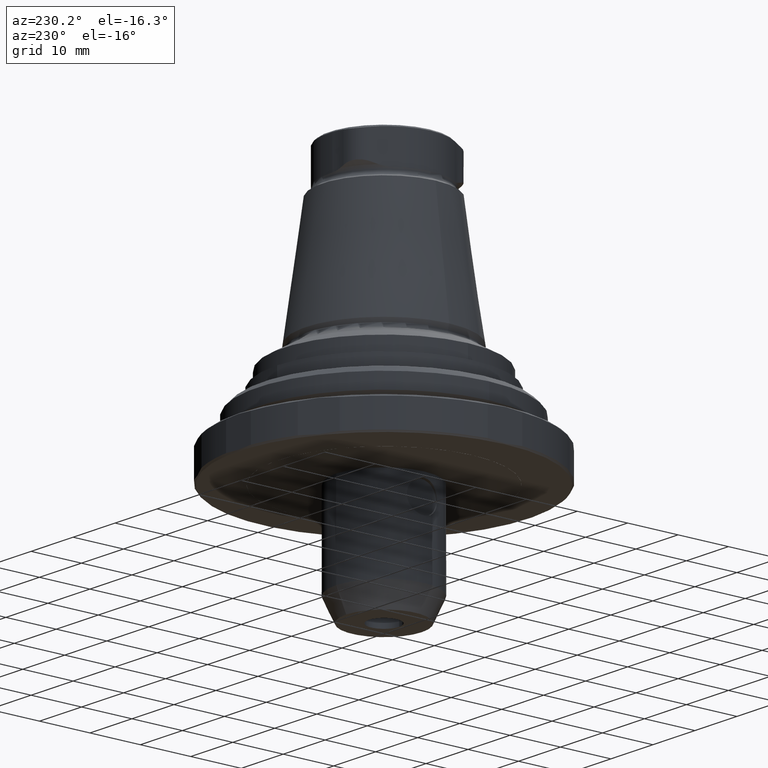
[diagram: clean part render]
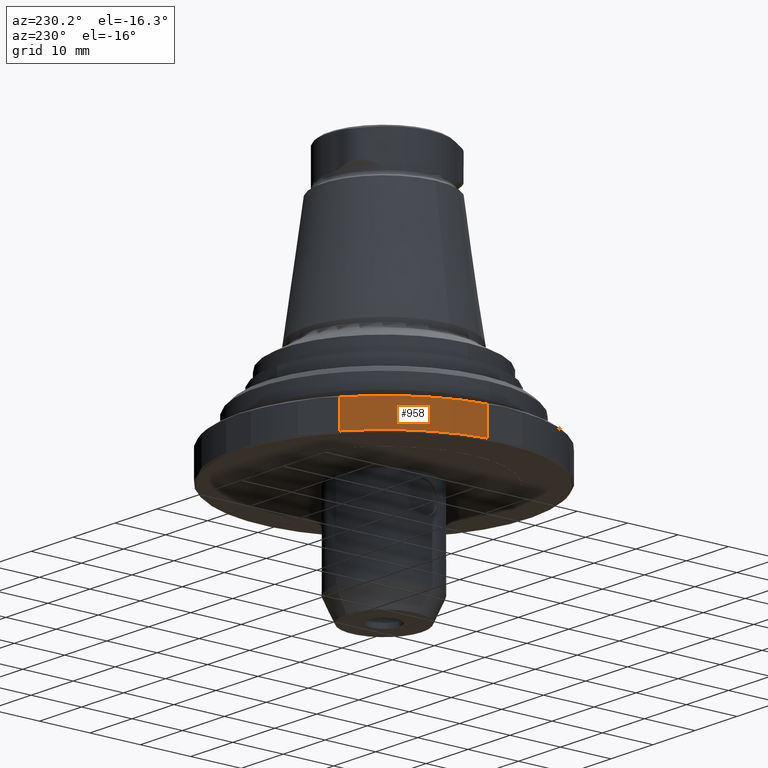
[diagram: same view with one face highlighted and labeled with its STEP entity id]
A machine part, auxiliary view. The second image highlights one B-rep face of the part: STEP entity #958.
In plain terms, the highlighted cylindrical surface (partial cylindrical patch) has radius 29 mm, axis along (-0, -0, -1).
Its self-contained STEP definition (entity closure, byte-faithful):
#55=LINE('',#1730,#83);
#56=LINE('',#1734,#84);
#83=VECTOR('',#1302,1000.);
#84=VECTOR('',#1307,1000.);
#151=CIRCLE('',#1073,29.);
#157=CIRCLE('',#1081,29.);
#331=ORIENTED_EDGE('',*,*,#517,.F.);
#332=ORIENTED_EDGE('',*,*,#518,.T.);
#333=ORIENTED_EDGE('',*,*,#502,.T.);
#334=ORIENTED_EDGE('',*,*,#516,.T.);
#502=EDGE_CURVE('',#612,#611,#151,.T.);
#516=EDGE_CURVE('',#611,#624,#55,.T.);
#517=EDGE_CURVE('',#625,#624,#157,.T.);
#518=EDGE_CURVE('',#625,#612,#56,.F.);
#611=VERTEX_POINT('',#1680);
#612=VERTEX_POINT('',#1682);
#624=VERTEX_POINT('',#1729);
#625=VERTEX_POINT('',#1733);
#753=EDGE_LOOP('',(#331,#332,#333,#334));
#853=FACE_BOUND('',#753,.T.);
#906=CYLINDRICAL_SURFACE('',#1080,29.);
#958=ADVANCED_FACE('',(#853),#906,.T.);
#1073=AXIS2_PLACEMENT_3D('',#1681,#1287,#1288);
#1080=AXIS2_PLACEMENT_3D('',#1731,#1303,#1304);
#1081=AXIS2_PLACEMENT_3D('',#1732,#1305,#1306);
#1287=DIRECTION('',(-5.20001084984554E-33,-4.76419527885826E-18,-1.));
#1288=DIRECTION('',(-1.,0.,0.));
#1302=DIRECTION('',(-5.20001084984554E-33,-4.76419527885826E-18,-1.));
#1303=DIRECTION('',(-5.20001084984554E-33,-4.76419527885826E-18,-1.));
#1304=DIRECTION('',(-1.,0.,0.));
#1305=DIRECTION('',(-5.20001084984554E-33,-4.76419527885826E-18,-1.));
#1306=DIRECTION('',(-1.,0.,0.));
#1307=DIRECTION('',(-5.20001084984554E-33,-4.76419527885826E-18,-1.));
#1680=CARTESIAN_POINT('',(-17.3444863728671,23.2415316289918,-1.29592921435212));
#1681=CARTESIAN_POINT('',(-1.56000325495366E-33,-1.42925858365748E-18,-1.29592921435212));
#1682=CARTESIAN_POINT('',(-28.8,3.39999999999998,-1.29592921435212));
#1729=CARTESIAN_POINT('',(-17.3444863728671,23.2415316289918,-6.69592921435212));
#1730=CARTESIAN_POINT('',(-17.3444863728671,23.2415316289918,-0.995929214352116));
#1731=CARTESIAN_POINT('',(0.,0.,-0.995929214352116));
#1732=CARTESIAN_POINT('',(-2.96400618441196E-32,-2.7155913089492E-17,-6.69592921435212));
#1733=CARTESIAN_POINT('',(-28.8,3.39999999999998,-6.69592921435212));
#1734=CARTESIAN_POINT('',(-28.8,3.39999999999998,-0.995929214352116));